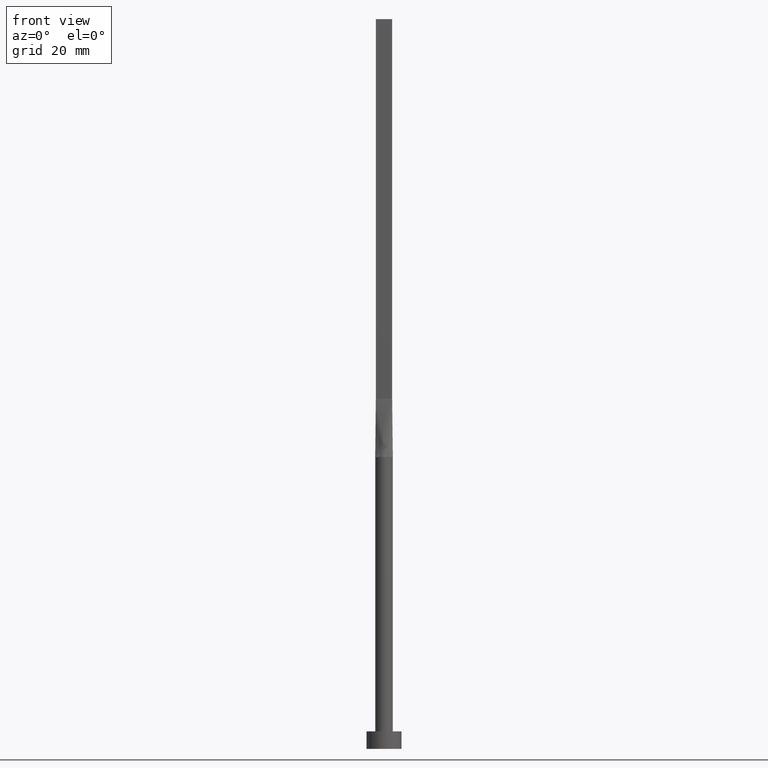
[diagram: clean part render]
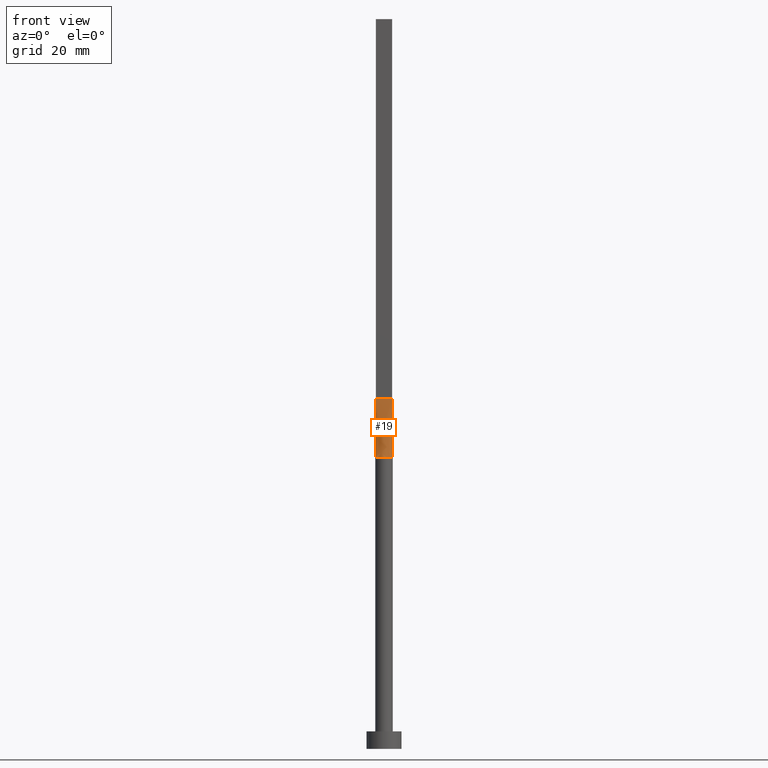
[diagram: same view with one face highlighted and labeled with its STEP entity id]
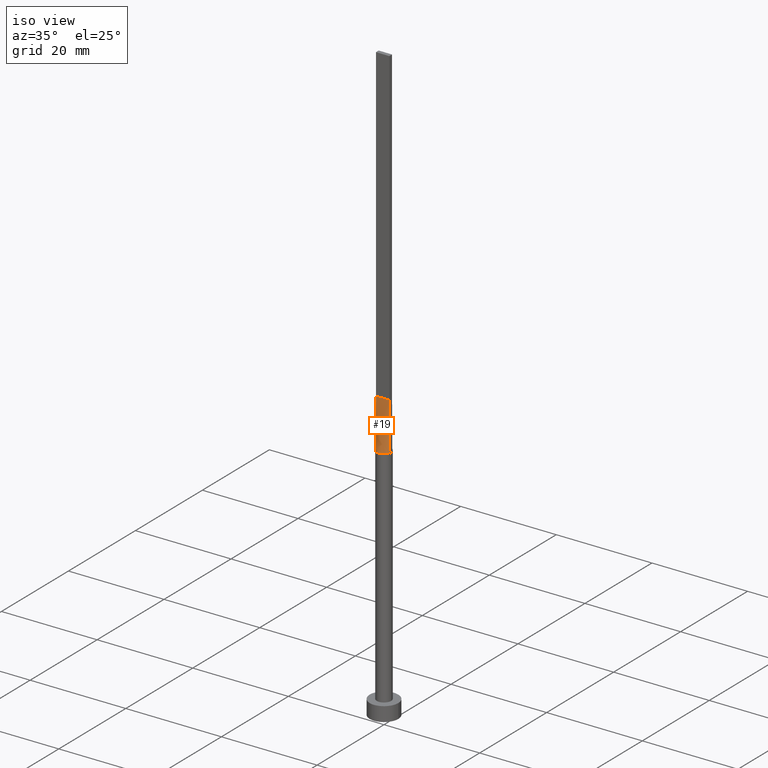
[diagram: same view with one face highlighted and labeled with its STEP entity id]
A machine part, front view. The second image highlights one B-rep face of the part: STEP entity #19.
A second angle (iso view) of the same face is appended — the face is thin or edge-on in the first view.
In plain terms, the highlighted face is a freeform B-spline surface patch.
Its self-contained STEP definition (entity closure, byte-faithful):
#3 = LINE ( 'NONE', #353, #119 ) ;
#13 = CARTESIAN_POINT ( 'NONE',  ( 1.421142960730617411, -0.4060408459230334111, 55.00000000000000711 ) ) ;
#18 = AXIS2_PLACEMENT_3D ( 'NONE', #442, #533, #356 ) ;
#19 = ADVANCED_FACE ( 'NONE', ( #286 ), #422, .T. ) ;
#20 = LINE ( 'NONE', #13, #86 ) ;
#28 = CARTESIAN_POINT ( 'NONE',  ( -0.8166666666666659857, -0.3999999999999996336, 59.99999999999998579 ) ) ;
#37 = CARTESIAN_POINT ( 'NONE',  ( -0.3767059690781856540, -1.463302066271690904, 50.00000000000001421 ) ) ;
#40 = EDGE_CURVE ( 'NONE', #301, #574, #3, .T. ) ;
#41 = CARTESIAN_POINT ( 'NONE',  ( 1.212111761082483197, -0.8950936653899579376, 50.00000000000000000 ) ) ;
#45 = CARTESIAN_POINT ( 'NONE',  ( -0.5833333333333325932, -0.3999999999999996336, 59.99999999999998579 ) ) ;
#55 = EDGE_CURVE ( 'NONE', #301, #251, #477, .T. ) ;
#57 = ORIENTED_EDGE ( 'NONE', *, *, #55, .T. ) ;
#71 = CARTESIAN_POINT ( 'NONE',  ( -1.421142960730617633, -0.4060408459230329670, 55.00000000000000711 ) ) ;
#84 = DIRECTION ( 'NONE',  ( -0.004228551254826051417, -0.001208157501378827629, -0.9999903298081123104 ) ) ;
#86 = VECTOR ( 'NONE', #139, 1000.000000000000000 ) ;
#94 = VECTOR ( 'NONE', #84, 1000.000000000000000 ) ;
#112 = CARTESIAN_POINT ( 'NONE',  ( -0.7158926189626813041, -1.330660769095146634, 49.99999999999998579 ) ) ;
#115 = CARTESIAN_POINT ( 'NONE',  ( 1.114527776139989435, -1.017390422009414541, 50.00000000000001421 ) ) ;
#119 = VECTOR ( 'NONE', #222, 1000.000000000000000 ) ;
#130 = CARTESIAN_POINT ( 'NONE',  ( 0.9333333333333334592, -0.3999999999999997446, 60.00000000000000000 ) ) ;
#139 = DIRECTION ( 'NONE',  ( -0.004228551254826029733, 0.001208157501378870997, 0.9999903298081123104 ) ) ;
#147 = CARTESIAN_POINT ( 'NONE',  ( -1.359280768448767551, -0.6502025712814705205, 50.00000000000000000 ) ) ;
#152 = EDGE_CURVE ( 'NONE', #309, #574, #20, .T. ) ;
#158 = CARTESIAN_POINT ( 'NONE',  ( -1.399999999999999911, -0.3999999999999996336, 60.00000000000000711 ) ) ;
#159 = CARTESIAN_POINT ( 'NONE',  ( -1.212111761082483863, -0.8950936653899566053, 50.00000000000000000 ) ) ;
#164 = CARTESIAN_POINT ( 'NONE',  ( -0.2333333333333329207, -0.3999999999999996336, 59.99999999999998579 ) ) ;
#169 = CARTESIAN_POINT ( 'NONE',  ( 1.442285921461234910, -0.4120816918460670220, 50.00000000000000000 ) ) ;
#216 = CARTESIAN_POINT ( 'NONE',  ( 1.442393550978850802, -0.4121129214357137083, 50.00000000000000000 ) ) ;
#222 = DIRECTION ( 'NONE',  ( 1.000000000000000000, -5.808225924029488744E-17, 0.000000000000000000 ) ) ;
#228 = CARTESIAN_POINT ( 'NONE',  ( 0.8665786268839185125, -1.235433898681766340, 50.00000000000002842 ) ) ;
#241 = EDGE_LOOP ( 'NONE', ( #433, #333, #478, #57 ) ) ;
#243 = CARTESIAN_POINT ( 'NONE',  ( -1.283333333333333215, -0.3999999999999996336, 60.00000000000000000 ) ) ;
#244 = CARTESIAN_POINT ( 'NONE',  ( -1.442285921461235132, -0.4120816918460664113, 50.00000000000000000 ) ) ;
#251 = VERTEX_POINT ( 'NONE', #429 ) ;
#256 = CARTESIAN_POINT ( 'NONE',  ( -1.114527776139990323, -1.017390422009413209, 50.00000000000001421 ) ) ;
#260 = CARTESIAN_POINT ( 'NONE',  ( 0.1166666666666669183, -0.3999999999999996336, 59.99999999999998579 ) ) ;
#264 = CARTESIAN_POINT ( 'NONE',  ( -0.8665786268839192896, -1.235433898681764786, 50.00000000000000711 ) ) ;
#268 = CARTESIAN_POINT ( 'NONE',  ( -0.4666666666666660079, -0.3999999999999996336, 59.99999999999998579 ) ) ;
#286 = FACE_OUTER_BOUND ( 'NONE', #241, .T. ) ;
#300 = CARTESIAN_POINT ( 'NONE',  ( 1.166666666666666741, -0.3999999999999997446, 60.00000000000000000 ) ) ;
#301 = VERTEX_POINT ( 'NONE', #158 ) ;
#305 = CARTESIAN_POINT ( 'NONE',  ( 0.5833333333333334814, -0.3999999999999997446, 60.00000000000000000 ) ) ;
#309 = VERTEX_POINT ( 'NONE', #216 ) ;
#313 = CARTESIAN_POINT ( 'NONE',  ( 0.4666666666666670071, -0.3999999999999997446, 60.00000000000000000 ) ) ;
#318 = CARTESIAN_POINT ( 'NONE',  ( 1.399999999999999911, -0.3999999999999998002, 60.00000000000000711 ) ) ;
#329 = CARTESIAN_POINT ( 'NONE',  ( -1.399999999999999911, -0.3999999999999996336, 60.00000000000000711 ) ) ;
#333 = ORIENTED_EDGE ( 'NONE', *, *, #152, .T. ) ;
#342 = CARTESIAN_POINT ( 'NONE',  ( 0.1885753531885892564, -1.499999999999999778, 50.00000000000001421 ) ) ;
#353 = CARTESIAN_POINT ( 'NONE',  ( -1.399999999999999911, -0.3999999999999996336, 60.00000000000000711 ) ) ;
#356 = DIRECTION ( 'NONE',  ( 1.000000000000000000, 0.000000000000000000, 0.000000000000000000 ) ) ;
#388 = CARTESIAN_POINT ( 'NONE',  ( 0.2333333333333336701, -0.3999999999999996891, 59.99999999999999289 ) ) ;
#407 = CARTESIAN_POINT ( 'NONE',  ( 1.283333333333333437, -0.3999999999999997446, 60.00000000000000000 ) ) ;
#422 = B_SPLINE_SURFACE_WITH_KNOTS ( 'NONE', 3, 1, ( 
 ( #244, #329 ),
 ( #458, #243 ),
 ( #147, #564 ),
 ( #159, #525 ),
 ( #256, #28 ),
 ( #264, #45 ),
 ( #112, #268 ),
 ( #37, #164 ),
 ( #538, #448 ),
 ( #342, #260 ),
 ( #444, #388 ),
 ( #441, #313 ),
 ( #228, #305 ),
 ( #115, #437 ),
 ( #41, #130 ),
 ( #573, #300 ),
 ( #484, #407 ),
 ( #169, #318 ) ),
 .UNSPECIFIED., .F., .F., .F.,
 ( 4, 2, 2, 2, 2, 2, 2, 2, 4 ),
 ( 2, 2 ),
 ( 0.000000000000000000, 0.1250000000000000833, 0.2500000000000001665, 0.3750000000000001110, 0.5000000000000001110, 0.6250000000000001110, 0.7500000000000000000, 0.8750000000000000000, 1.000000000000000000 ),
 ( 0.000000000000000000, 1.000000000000000000 ),
 .UNSPECIFIED. ) ;
#429 = CARTESIAN_POINT ( 'NONE',  ( -1.442368678646663405, -0.4121057215347019853, 50.00000000000000000 ) ) ;
#433 = ORIENTED_EDGE ( 'NONE', *, *, #457, .T. ) ;
#437 = CARTESIAN_POINT ( 'NONE',  ( 0.8166666666666667629, -0.3999999999999997446, 60.00000000000000000 ) ) ;
#440 = CARTESIAN_POINT ( 'NONE',  ( 1.399999999999999911, -0.3999999999999998002, 60.00000000000000711 ) ) ;
#441 = CARTESIAN_POINT ( 'NONE',  ( 0.7158926189626801939, -1.330660769095147744, 50.00000000000000711 ) ) ;
#442 = CARTESIAN_POINT ( 'NONE',  ( 0.000000000000000000, 0.000000000000000000, 50.00000000000000000 ) ) ;
#444 = CARTESIAN_POINT ( 'NONE',  ( 0.3767059690781844328, -1.463302066271691571, 50.00000000000000000 ) ) ;
#448 = CARTESIAN_POINT ( 'NONE',  ( -0.1166666666666663771, -0.3999999999999996336, 59.99999999999999289 ) ) ;
#457 = EDGE_CURVE ( 'NONE', #251, #309, #578, .T. ) ;
#458 = CARTESIAN_POINT ( 'NONE',  ( -1.409267053536706893, -0.5276477295819155255, 50.00000000000001421 ) ) ;
#477 = LINE ( 'NONE', #71, #94 ) ;
#478 = ORIENTED_EDGE ( 'NONE', *, *, #40, .F. ) ;
#484 = CARTESIAN_POINT ( 'NONE',  ( 1.409267053536706671, -0.5276477295819165247, 50.00000000000000711 ) ) ;
#525 = CARTESIAN_POINT ( 'NONE',  ( -0.9333333333333327930, -0.3999999999999996336, 60.00000000000000000 ) ) ;
#533 = DIRECTION ( 'NONE',  ( 0.000000000000000000, 0.000000000000000000, 1.000000000000000000 ) ) ;
#538 = CARTESIAN_POINT ( 'NONE',  ( -0.1885753531885907275, -1.500000000000000000, 50.00000000000000711 ) ) ;
#564 = CARTESIAN_POINT ( 'NONE',  ( -1.166666666666666297, -0.3999999999999996336, 60.00000000000000000 ) ) ;
#573 = CARTESIAN_POINT ( 'NONE',  ( 1.359280768448766663, -0.6502025712814719638, 50.00000000000000711 ) ) ;
#574 = VERTEX_POINT ( 'NONE', #440 ) ;
#578 = CIRCLE ( 'NONE', #18, 1.500000000000000222 ) ;